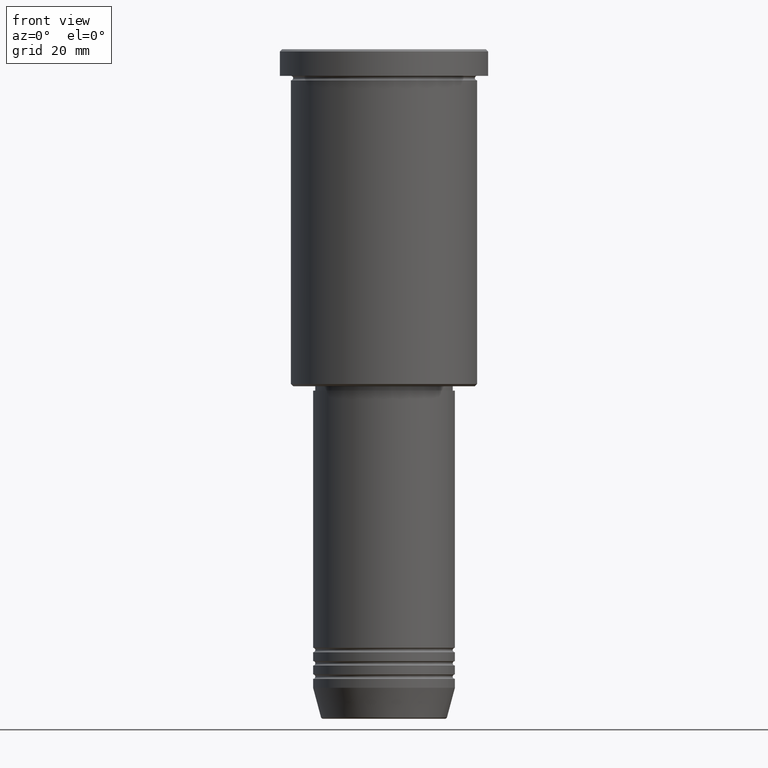
[diagram: clean part render]
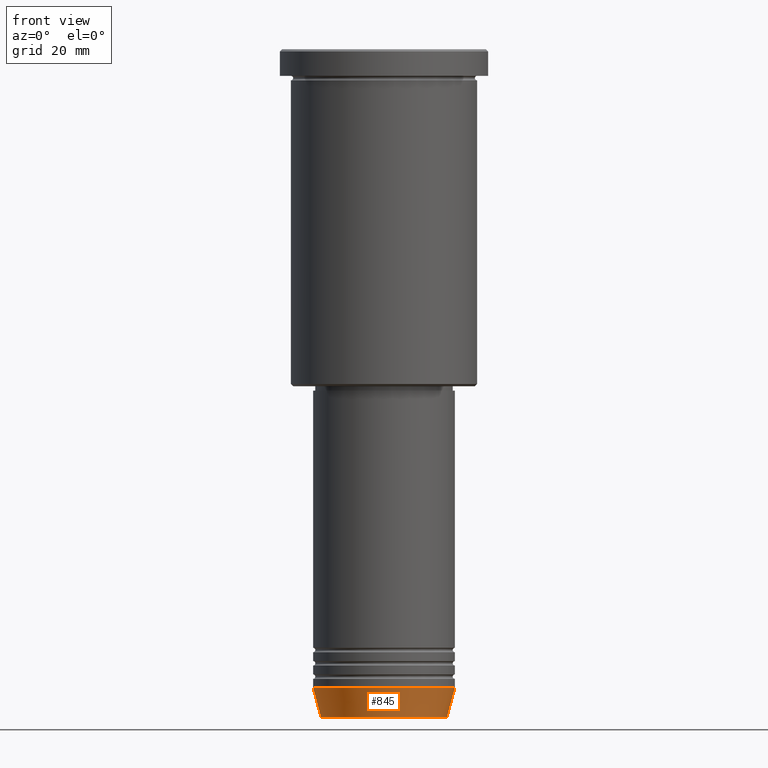
[diagram: same view with one face highlighted and labeled with its STEP entity id]
A machine part, front view. The second image highlights one B-rep face of the part: STEP entity #845.
In plain terms, the highlighted conical surface has half-angle 15 deg.
Its self-contained STEP definition (entity closure, byte-faithful):
#9 = VERTEX_POINT ( 'NONE', #833 ) ;
#12 = DIRECTION ( 'NONE',  ( -0.000000000000000000, -0.000000000000000000, 1.000000000000000000 ) ) ;
#23 = VECTOR ( 'NONE', #1165, 1000.000000000000000 ) ;
#24 = CARTESIAN_POINT ( 'NONE',  ( 14.22365507213720193, 0.000000000000000000, -150.6294095225512137 ) ) ;
#48 = DIRECTION ( 'NONE',  ( 1.000000000000000000, 0.000000000000000000, 0.000000000000000000 ) ) ;
#75 = CARTESIAN_POINT ( 'NONE',  ( 16.00000000000000000, 0.000000000000000000, -144.0000000000000000 ) ) ;
#107 = VERTEX_POINT ( 'NONE', #24 ) ;
#125 = ORIENTED_EDGE ( 'NONE', *, *, #881, .F. ) ;
#138 = CIRCLE ( 'NONE', #1134, 14.22365507213720193 ) ;
#227 = DIRECTION ( 'NONE',  ( -0.000000000000000000, -0.000000000000000000, 1.000000000000000000 ) ) ;
#264 = EDGE_LOOP ( 'NONE', ( #313, #330, #1144, #125 ) ) ;
#269 = EDGE_CURVE ( 'NONE', #389, #9, #1015, .T. ) ;
#271 = LINE ( 'NONE', #640, #23 ) ;
#313 = ORIENTED_EDGE ( 'NONE', *, *, #269, .F. ) ;
#330 = ORIENTED_EDGE ( 'NONE', *, *, #1104, .T. ) ;
#389 = VERTEX_POINT ( 'NONE', #631 ) ;
#533 = DIRECTION ( 'NONE',  ( -0.2588190451025209615, 3.169619151431767406E-17, 0.9659258262890682012 ) ) ;
#535 = AXIS2_PLACEMENT_3D ( 'NONE', #905, #804, #706 ) ;
#559 = DIRECTION ( 'NONE',  ( 1.000000000000000000, 0.000000000000000000, 0.000000000000000000 ) ) ;
#619 = AXIS2_PLACEMENT_3D ( 'NONE', #648, #12, #559 ) ;
#631 = CARTESIAN_POINT ( 'NONE',  ( -14.22365507213720193, 1.850665122131324126E-15, -150.6294095225512137 ) ) ;
#640 = CARTESIAN_POINT ( 'NONE',  ( 16.00000000000000000, 0.000000000000000000, -144.0000000000000000 ) ) ;
#648 = CARTESIAN_POINT ( 'NONE',  ( 0.000000000000000000, 0.000000000000000000, -144.0000000000000000 ) ) ;
#706 = DIRECTION ( 'NONE',  ( 1.000000000000000000, 0.000000000000000000, 0.000000000000000000 ) ) ;
#786 = EDGE_CURVE ( 'NONE', #107, #818, #271, .T. ) ;
#804 = DIRECTION ( 'NONE',  ( -0.000000000000000000, -0.000000000000000000, 1.000000000000000000 ) ) ;
#818 = VERTEX_POINT ( 'NONE', #75 ) ;
#833 = CARTESIAN_POINT ( 'NONE',  ( -16.00000000000000000, 1.959434878635765131E-15, -144.0000000000000000 ) ) ;
#845 = ADVANCED_FACE ( 'NONE', ( #1088 ), #1035, .T. ) ;
#881 = EDGE_CURVE ( 'NONE', #9, #818, #1132, .T. ) ;
#905 = CARTESIAN_POINT ( 'NONE',  ( 0.000000000000000000, 0.000000000000000000, -144.0000000000000000 ) ) ;
#1015 = LINE ( 'NONE', #1166, #1020 ) ;
#1020 = VECTOR ( 'NONE', #533, 1000.000000000000000 ) ;
#1035 = CONICAL_SURFACE ( 'NONE', #535, 16.00000000000000000, 0.2617993877991496299 ) ;
#1088 = FACE_OUTER_BOUND ( 'NONE', #264, .T. ) ;
#1104 = EDGE_CURVE ( 'NONE', #389, #107, #138, .T. ) ;
#1131 = CARTESIAN_POINT ( 'NONE',  ( 0.000000000000000000, 0.000000000000000000, -150.6294095225512137 ) ) ;
#1132 = CIRCLE ( 'NONE', #619, 16.00000000000000000 ) ;
#1134 = AXIS2_PLACEMENT_3D ( 'NONE', #1131, #227, #48 ) ;
#1144 = ORIENTED_EDGE ( 'NONE', *, *, #786, .T. ) ;
#1165 = DIRECTION ( 'NONE',  ( 0.2588190451025209615, 0.000000000000000000, 0.9659258262890682012 ) ) ;
#1166 = CARTESIAN_POINT ( 'NONE',  ( -16.00000000000000000, 1.959434878635765131E-15, -144.0000000000000000 ) ) ;